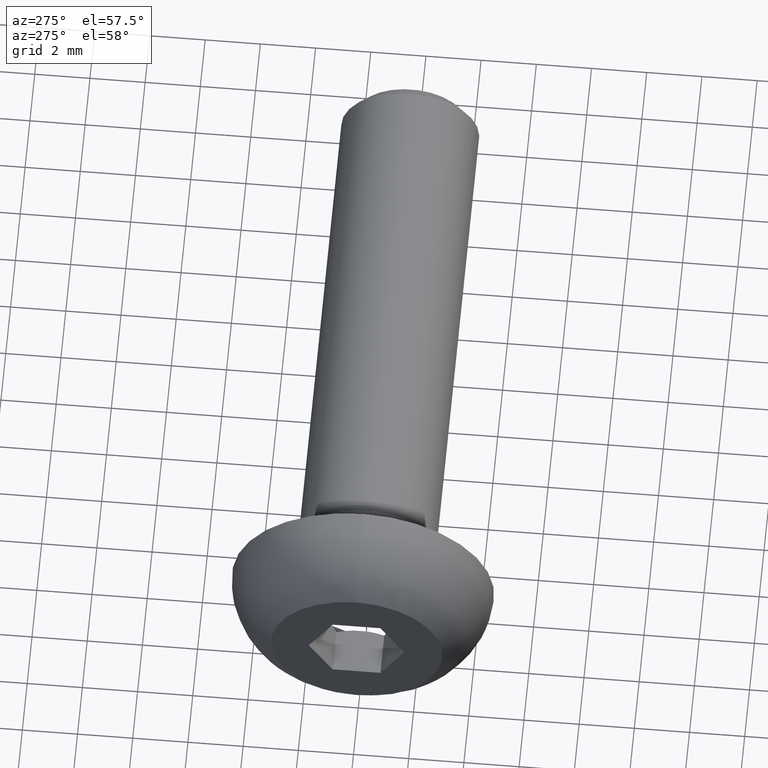
[diagram: clean part render]
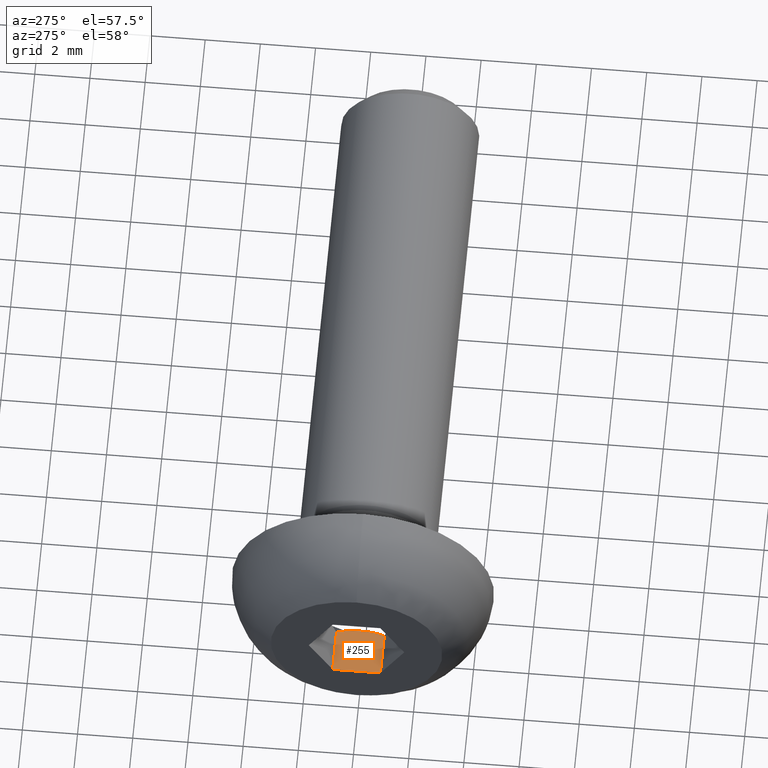
[diagram: same view with one face highlighted and labeled with its STEP entity id]
A machine part, auxiliary view. The second image highlights one B-rep face of the part: STEP entity #255.
In plain terms, the highlighted planar face has unit normal (0, 0, -1).
Its self-contained STEP definition (entity closure, byte-faithful):
#40=FACE_OUTER_BOUND('',#57,.T.);
#57=EDGE_LOOP('',(#184,#185,#186,#187));
#77=LINE('',#413,#94);
#81=LINE('',#429,#98);
#82=LINE('',#430,#99);
#94=VECTOR('',#329,10.);
#98=VECTOR('',#337,10.);
#99=VECTOR('',#338,10.);
#111=(
BOUNDED_CURVE()
B_SPLINE_CURVE(2,(#425,#426,#427),.UNSPECIFIED.,.F.,.F.)
B_SPLINE_CURVE_WITH_KNOTS((3,3),(0.0112420685802629,0.190748030186978),
 .UNSPECIFIED.)
CURVE()
GEOMETRIC_REPRESENTATION_ITEM()
RATIONAL_B_SPLINE_CURVE((1.02102355330306,1.17897644669695,1.02102355330306))
REPRESENTATION_ITEM('')
);
#118=VERTEX_POINT('',#408);
#119=VERTEX_POINT('',#412);
#122=VERTEX_POINT('',#424);
#123=VERTEX_POINT('',#428);
#142=EDGE_CURVE('',#119,#118,#77,.T.);
#147=EDGE_CURVE('',#122,#118,#111,.T.);
#148=EDGE_CURVE('',#123,#122,#81,.T.);
#149=EDGE_CURVE('',#119,#123,#82,.T.);
#184=ORIENTED_EDGE('',*,*,#147,.F.);
#185=ORIENTED_EDGE('',*,*,#148,.F.);
#186=ORIENTED_EDGE('',*,*,#149,.F.);
#187=ORIENTED_EDGE('',*,*,#142,.T.);
#245=PLANE('',#295);
#255=ADVANCED_FACE('',(#40),#245,.F.);
#295=AXIS2_PLACEMENT_3D('',#423,#335,#336);
#329=DIRECTION('',(1.,9.76020241428709E-17,0.));
#335=DIRECTION('center_axis',(0.,0.,-1.));
#336=DIRECTION('ref_axis',(-1.,0.,0.));
#337=DIRECTION('',(1.,9.76020241428709E-17,0.));
#338=DIRECTION('',(-9.36676212591553E-17,1.,0.));
#408=CARTESIAN_POINT('',(-1.15076951545867,-0.866025403784439,-1.5));
#412=CARTESIAN_POINT('',(-2.75,-0.866025403784439,-1.5));
#413=CARTESIAN_POINT('',(-2.75,-0.866025403784439,-1.5));
#423=CARTESIAN_POINT('Origin',(-2.75,0.866025403784438,-1.5));
#424=CARTESIAN_POINT('',(-1.15076951545867,0.866025403784439,-1.5));
#425=CARTESIAN_POINT('Ctrl Pts',(-1.15076951545867,0.866025403784439,-1.5));
#426=CARTESIAN_POINT('Ctrl Pts',(-0.900769515458672,-8.50014503228635E-16,
-1.5));
#427=CARTESIAN_POINT('Ctrl Pts',(-1.15076951545867,-0.866025403784439,-1.5));
#428=CARTESIAN_POINT('',(-2.75,0.866025403784438,-1.5));
#429=CARTESIAN_POINT('',(-2.75,0.866025403784438,-1.5));
#430=CARTESIAN_POINT('',(-2.75,0.433012701892218,-1.5));